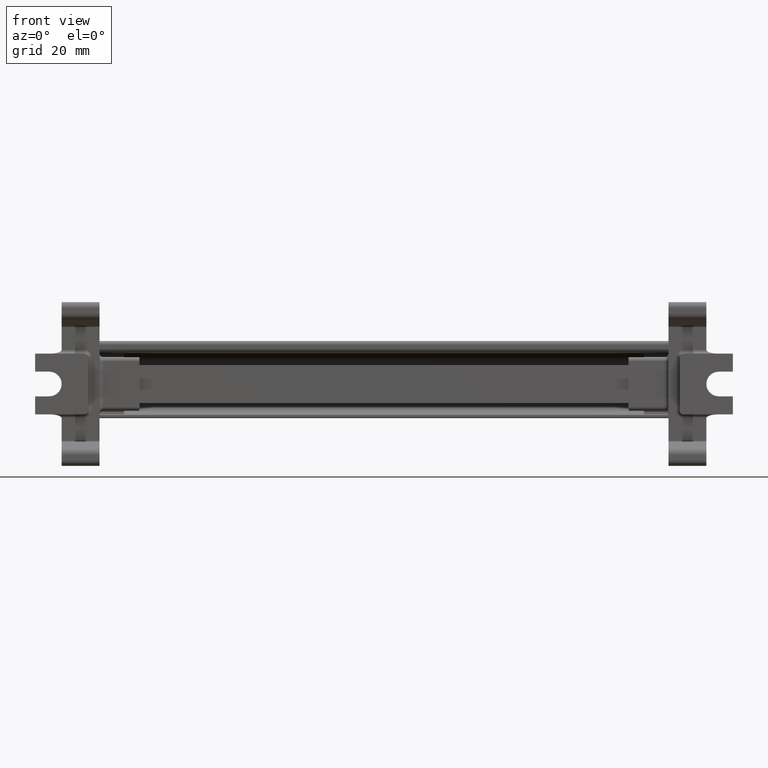
[diagram: clean part render]
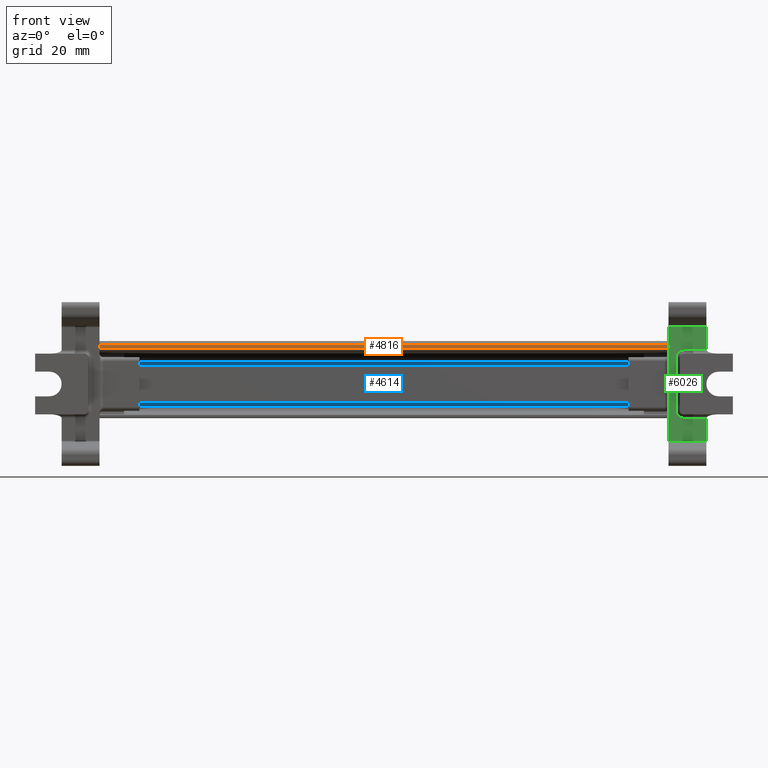
[diagram: same view with three faces highlighted in distinct colors, each labeled with its STEP entity id]
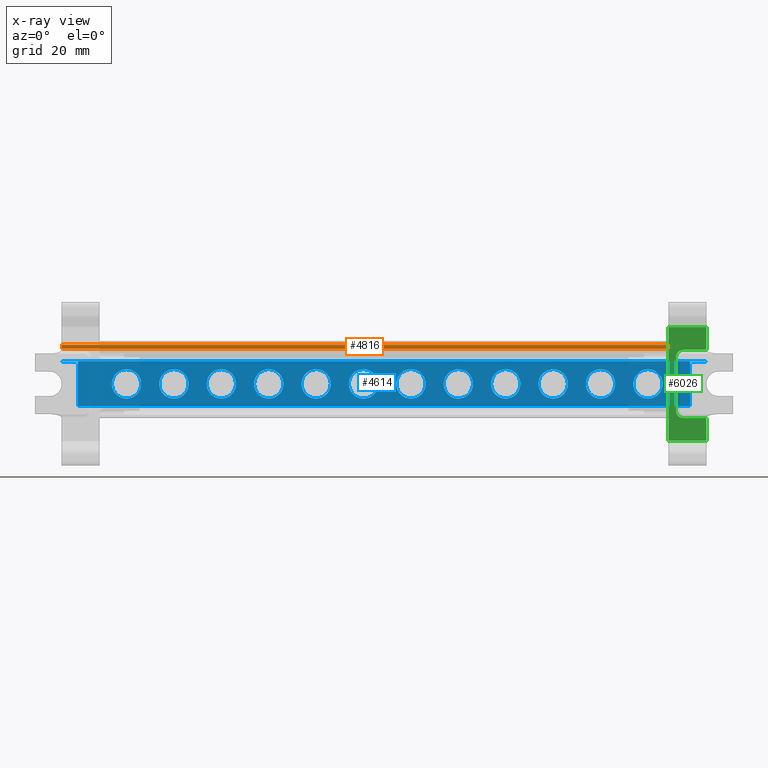
[diagram: x-ray of the same camera — body ghosted, the three highlighted faces saturated]
A machine part, front view with three faces highlighted in distinct colors.
The next image is the same camera in x-ray (body ghosted, the three faces saturated) — at least one of them is partly hidden behind the body in this view.
Their STEP definitions:

[orange] entity #4816 — the highlighted planar face has unit normal (0, 1, 0).
#7 = EDGE_LOOP ( 'NONE', ( #2125, #2147, #2160, #2137 ) ) ;
#2125 = ORIENTED_EDGE ( 'NONE', *, *, #7275, .F. ) ;
#2137 = ORIENTED_EDGE ( 'NONE', *, *, #12263, .T. ) ;
#2147 = ORIENTED_EDGE ( 'NONE', *, *, #12130, .F. ) ;
#2160 = ORIENTED_EDGE ( 'NONE', *, *, #11949, .T. ) ;
#4816 = ADVANCED_FACE ( 'NONE', ( #31772 ), #31781, .F. ) ;
#7275 = EDGE_CURVE ( 'NONE', #9704, #9675, #13911, .T. ) ;
#9539 = VERTEX_POINT ( 'NONE', #16777 ) ;
#9586 = VERTEX_POINT ( 'NONE', #16814 ) ;
#9675 = VERTEX_POINT ( 'NONE', #16861 ) ;
#9704 = VERTEX_POINT ( 'NONE', #16904 ) ;
#11949 = EDGE_CURVE ( 'NONE', #9539, #9586, #18241, .T. ) ;
#12130 = EDGE_CURVE ( 'NONE', #9539, #9704, #18037, .T. ) ;
#12263 = EDGE_CURVE ( 'NONE', #9586, #9675, #19900, .T. ) ;
#13911 = LINE ( 'NONE', #13912, #24447 ) ;
#13912 = CARTESIAN_POINT ( 'NONE',  ( -12.35269769582570000, 50.08103158804637200, 47.42609486049623500 ) ) ;
#13943 = DIRECTION ( 'NONE',  ( -1.000000000000000000, 7.897574933814930700E-015, 3.853197141484226100E-015 ) ) ;
#16777 = CARTESIAN_POINT ( 'NONE',  ( 44.94230230417426200, 50.08103030134751100, 48.41294037853481300 ) ) ;
#16814 = CARTESIAN_POINT ( 'NONE',  ( -124.8476976958257000, 50.08103030134884600, 48.41294037853546700 ) ) ;
#16861 = CARTESIAN_POINT ( 'NONE',  ( -124.8476976958257000, 50.08103158804726000, 47.42609486049666100 ) ) ;
#16904 = CARTESIAN_POINT ( 'NONE',  ( 44.94230230417425500, 50.08103158804592400, 47.42609486049600800 ) ) ;
#18037 = LINE ( 'NONE', #18038, #34335 ) ;
#18038 = CARTESIAN_POINT ( 'NONE',  ( 44.94230230417413500, 50.08107413732474800, 14.79252555379498300 ) ) ;
#18052 = DIRECTION ( 'NONE',  ( -3.864774200239575400E-015, 1.303849985042989100E-006, -0.9999999999991500100 ) ) ;
#18241 = LINE ( 'NONE', #18242, #31344 ) ;
#18242 = CARTESIAN_POINT ( 'NONE',  ( -12.35269769582570000, 50.08103030134795800, 48.41294037853504100 ) ) ;
#18258 = DIRECTION ( 'NONE',  ( -1.000000000000000000, 7.897574933814930700E-015, 3.853197141484226100E-015 ) ) ;
#19837 = CARTESIAN_POINT ( 'NONE',  ( -124.8476976958258100, 50.08107413732608400, 14.79252555379564000 ) ) ;
#19842 = DIRECTION ( 'NONE',  ( -3.864774200239575400E-015, 1.303849985042989100E-006, -0.9999999999991500100 ) ) ;
#19900 = LINE ( 'NONE', #19837, #24231 ) ;
#24231 = VECTOR ( 'NONE', #19842, 1000.000000000000100 ) ;
#24447 = VECTOR ( 'NONE', #13943, 1000.000000000000000 ) ;
#28183 = AXIS2_PLACEMENT_3D ( 'NONE', #31779, #31784, #31792 ) ;
#31344 = VECTOR ( 'NONE', #18258, 1000.000000000000000 ) ;
#31772 = FACE_OUTER_BOUND ( 'NONE', #7, .T. ) ;
#31779 = CARTESIAN_POINT ( 'NONE',  ( -12.35269769582580500, 50.08107413732519600, 14.79252555379520500 ) ) ;
#31781 = PLANE ( 'NONE',  #28183 ) ;
#31784 = DIRECTION ( 'NONE',  ( 7.897579957799254800E-015, 0.9999999999991500100, 1.303849985042989100E-006 ) ) ;
#31792 = DIRECTION ( 'NONE',  ( -6.895466885225492600E-021, -1.303849985042989100E-006, 0.9999999999991500100 ) ) ;
#34335 = VECTOR ( 'NONE', #18052, 1000.000000000000100 ) ;

[blue] entity #4614 — the highlighted planar face has unit normal (0, 1, 0).
#978 = EDGE_LOOP ( 'NONE', ( #26424, #26479 ) ) ;
#989 = EDGE_LOOP ( 'NONE', ( #26450, #26402 ) ) ;
#1011 = EDGE_LOOP ( 'NONE', ( #26511, #26453 ) ) ;
#1012 = EDGE_LOOP ( 'NONE', ( #26448, #26439 ) ) ;
#1022 = EDGE_LOOP ( 'NONE', ( #26396, #26487 ) ) ;
#1025 = EDGE_LOOP ( 'NONE', ( #26371, #26466 ) ) ;
#1026 = EDGE_LOOP ( 'NONE', ( #26446, #26496 ) ) ;
#1037 = EDGE_LOOP ( 'NONE', ( #26504, #26469 ) ) ;
#1049 = EDGE_LOOP ( 'NONE', ( #26536, #26438 ) ) ;
#1077 = EDGE_LOOP ( 'NONE', ( #26428, #26375 ) ) ;
#1091 = EDGE_LOOP ( 'NONE', ( #26523, #26514 ) ) ;
#1107 = EDGE_LOOP ( 'NONE', ( #26522, #26451 ) ) ;
#1143 = EDGE_LOOP ( 'NONE', ( #26507, #26494, #26533, #26485, #26495, #26501, #26474, #26415 ) ) ;
#4614 = ADVANCED_FACE ( 'NONE', ( #27342, #27343, #27320, #27325, #27348, #27337, #27338, #27357, #27354, #27319, #27336, #27315, #27316 ), #27332, .F. ) ;
#9514 = VERTEX_POINT ( 'NONE', #16644 ) ;
#9518 = VERTEX_POINT ( 'NONE', #16758 ) ;
#9522 = VERTEX_POINT ( 'NONE', #16782 ) ;
#9526 = VERTEX_POINT ( 'NONE', #16669 ) ;
#9547 = VERTEX_POINT ( 'NONE', #16737 ) ;
#9548 = VERTEX_POINT ( 'NONE', #16776 ) ;
#9554 = VERTEX_POINT ( 'NONE', #16789 ) ;
#9569 = VERTEX_POINT ( 'NONE', #16731 ) ;
#9581 = VERTEX_POINT ( 'NONE', #16836 ) ;
#9587 = VERTEX_POINT ( 'NONE', #16821 ) ;
#9589 = VERTEX_POINT ( 'NONE', #16833 ) ;
#9605 = VERTEX_POINT ( 'NONE', #16841 ) ;
#9608 = VERTEX_POINT ( 'NONE', #16806 ) ;
#9643 = VERTEX_POINT ( 'NONE', #16906 ) ;
#9672 = VERTEX_POINT ( 'NONE', #16903 ) ;
#9678 = VERTEX_POINT ( 'NONE', #16894 ) ;
#9680 = VERTEX_POINT ( 'NONE', #16920 ) ;
#9694 = VERTEX_POINT ( 'NONE', #16869 ) ;
#9705 = VERTEX_POINT ( 'NONE', #16910 ) ;
#9708 = VERTEX_POINT ( 'NONE', #16952 ) ;
#9719 = VERTEX_POINT ( 'NONE', #16978 ) ;
#9748 = VERTEX_POINT ( 'NONE', #16968 ) ;
#10597 = VERTEX_POINT ( 'NONE', #17289 ) ;
#10612 = VERTEX_POINT ( 'NONE', #17300 ) ;
#10615 = VERTEX_POINT ( 'NONE', #17283 ) ;
#10621 = VERTEX_POINT ( 'NONE', #17301 ) ;
#10624 = VERTEX_POINT ( 'NONE', #17286 ) ;
#10625 = VERTEX_POINT ( 'NONE', #17267 ) ;
#11860 = EDGE_CURVE ( 'NONE', #10621, #10624, #31225, .T. ) ;
#11865 = EDGE_CURVE ( 'NONE', #10612, #19290, #31228, .T. ) ;
#11867 = EDGE_CURVE ( 'NONE', #19314, #19320, #31233, .T. ) ;
#11910 = EDGE_CURVE ( 'NONE', #10597, #10615, #31274, .T. ) ;
#11915 = EDGE_CURVE ( 'NONE', #9569, #9548, #31311, .T. ) ;
#11936 = EDGE_CURVE ( 'NONE', #9526, #9547, #31330, .T. ) ;
#11956 = EDGE_CURVE ( 'NONE', #9518, #9587, #31337, .T. ) ;
#11959 = EDGE_CURVE ( 'NONE', #9514, #9581, #31338, .T. ) ;
#11967 = EDGE_CURVE ( 'NONE', #9554, #9522, #31387, .T. ) ;
#11988 = EDGE_CURVE ( 'NONE', #9605, #9608, #31159, .T. ) ;
#11999 = EDGE_CURVE ( 'NONE', #9708, #9680, #18516, .T. ) ;
#12063 = EDGE_CURVE ( 'NONE', #9643, #9589, #34224, .T. ) ;
#12094 = EDGE_CURVE ( 'NONE', #9581, #9514, #34371, .T. ) ;
#12126 = EDGE_CURVE ( 'NONE', #9672, #9678, #18050, .T. ) ;
#12156 = EDGE_CURVE ( 'NONE', #9608, #9605, #34529, .T. ) ;
#12160 = EDGE_CURVE ( 'NONE', #9522, #9554, #34514, .T. ) ;
#12167 = EDGE_CURVE ( 'NONE', #9708, #9748, #18106, .T. ) ;
#12169 = EDGE_CURVE ( 'NONE', #9719, #9680, #18707, .T. ) ;
#12213 = EDGE_CURVE ( 'NONE', #9547, #9526, #24165, .T. ) ;
#12214 = EDGE_CURVE ( 'NONE', #9548, #9569, #24169, .T. ) ;
#12219 = EDGE_CURVE ( 'NONE', #19320, #19314, #24184, .T. ) ;
#12220 = EDGE_CURVE ( 'NONE', #19290, #10612, #24199, .T. ) ;
#12240 = EDGE_CURVE ( 'NONE', #9748, #9678, #21756, .T. ) ;
#12249 = EDGE_CURVE ( 'NONE', #9589, #9643, #24189, .T. ) ;
#12255 = EDGE_CURVE ( 'NONE', #9672, #9694, #19838, .T. ) ;
#12273 = EDGE_CURVE ( 'NONE', #10624, #10621, #24249, .T. ) ;
#12277 = EDGE_CURVE ( 'NONE', #10615, #10597, #24246, .T. ) ;
#12280 = EDGE_CURVE ( 'NONE', #19296, #10625, #24271, .T. ) ;
#12294 = EDGE_CURVE ( 'NONE', #9719, #9705, #20176, .T. ) ;
#12298 = EDGE_CURVE ( 'NONE', #9694, #9705, #20279, .T. ) ;
#12301 = EDGE_CURVE ( 'NONE', #9587, #9518, #24302, .T. ) ;
#12467 = EDGE_CURVE ( 'NONE', #10625, #19296, #23836, .T. ) ;
#13598 = DIRECTION ( 'NONE',  ( -7.897574933814967000E-015, -1.000000000000000000, -9.563626555420530900E-015 ) ) ;
#13633 = DIRECTION ( 'NONE',  ( 0.0000000000000000000, -1.075847481370219800E-014, 1.000000000000000000 ) ) ;
#16532 = CARTESIAN_POINT ( 'NONE',  ( -45.35269769582559000, 73.21282648293230000, 38.07764994244596600 ) ) ;
#16591 = DIRECTION ( 'NONE',  ( 0.0000000000000000000, 1.075797504481741200E-014, -1.000000000000000000 ) ) ;
#16600 = CARTESIAN_POINT ( 'NONE',  ( -120.6521591830564400, 73.21282648293350800, 14.79254153265042500 ) ) ;
#16606 = DIRECTION ( 'NONE',  ( -7.897574933814967000E-015, -1.000000000000000000, -9.563626555420530900E-015 ) ) ;
#16608 = DIRECTION ( 'NONE',  ( 3.511194151394856200E-015, 9.563626555420502500E-015, -1.000000000000000000 ) ) ;
#16619 = CARTESIAN_POINT ( 'NONE',  ( 29.64730230417446700, 73.21282648293218600, 38.07764994244592300 ) ) ;
#16644 = CARTESIAN_POINT ( 'NONE',  ( -24.22251792075321200, 73.21282648293210100, 38.07764998369773200 ) ) ;
#16669 = CARTESIAN_POINT ( 'NONE',  ( -61.72251792075320500, 73.21282648293252700, 38.07764998369773200 ) ) ;
#16731 = CARTESIAN_POINT ( 'NONE',  ( -49.22251792075321900, 73.21282648293232900, 38.07764998369773200 ) ) ;
#16737 = CARTESIAN_POINT ( 'NONE',  ( -53.98287747089791100, 73.21282648293247100, 38.07764998369773200 ) ) ;
#16758 = CARTESIAN_POINT ( 'NONE',  ( -36.72251792075319800, 73.21282648293230000, 38.07764998369773200 ) ) ;
#16776 = CARTESIAN_POINT ( 'NONE',  ( -41.48287747089791800, 73.21282648293227200, 38.07764998369773200 ) ) ;
#16782 = CARTESIAN_POINT ( 'NONE',  ( -3.982877470897917300, 73.21282648293207300, 38.07764998369773200 ) ) ;
#16789 = CARTESIAN_POINT ( 'NONE',  ( -11.72251792075321000, 73.21282648293213000, 38.07764998369773200 ) ) ;
#16806 = CARTESIAN_POINT ( 'NONE',  ( -66.48287747089796100, 73.21282648293247100, 38.07764998369773200 ) ) ;
#16821 = CARTESIAN_POINT ( 'NONE',  ( -28.98287747089790400, 73.21282648293224300, 38.07764998369773200 ) ) ;
#16833 = CARTESIAN_POINT ( 'NONE',  ( 8.517122529102085300, 73.21282648293204400, 38.07764998369773200 ) ) ;
#16836 = CARTESIAN_POINT ( 'NONE',  ( -16.48287747089791100, 73.21282648293204400, 38.07764998369773200 ) ) ;
#16841 = CARTESIAN_POINT ( 'NONE',  ( -74.22251792075324800, 73.21282648293252700, 38.07764998369773200 ) ) ;
#16869 = CARTESIAN_POINT ( 'NONE',  ( -124.8476976958255300, 73.21282648293311000, 44.07424903034279900 ) ) ;
#16894 = CARTESIAN_POINT ( 'NONE',  ( 44.94230230417442600, 73.21282648293252700, 43.93826644650412300 ) ) ;
#16903 = CARTESIAN_POINT ( 'NONE',  ( 44.94230230417442600, 73.21282648293176000, 44.07424903034214500 ) ) ;
#16906 = CARTESIAN_POINT ( 'NONE',  ( 0.7774820792467909100, 73.21282648293210100, 38.07764998369773200 ) ) ;
#16910 = CARTESIAN_POINT ( 'NONE',  ( -124.8476976958255700, 73.21282648293333800, 43.93826644650375400 ) ) ;
#16920 = CARTESIAN_POINT ( 'NONE',  ( -120.6521591830565300, 73.21282648293329500, 32.27425228012668900 ) ) ;
#16952 = CARTESIAN_POINT ( 'NONE',  ( 40.74676379140873900, 73.21282648293261300, 32.27425228012604900 ) ) ;
#16968 = CARTESIAN_POINT ( 'NONE',  ( 40.74676379140844100, 73.21282648293197300, 43.93826644650403800 ) ) ;
#16978 = CARTESIAN_POINT ( 'NONE',  ( -120.6521591830565000, 73.21282648293339400, 43.93826644650369700 ) ) ;
#17267 = CARTESIAN_POINT ( 'NONE',  ( -82.85269769582559700, 73.21282648293303900, 41.94764994223232400 ) ) ;
#17283 = CARTESIAN_POINT ( 'NONE',  ( 29.64730230417444500, 73.21282648293222900, 34.20764994223077300 ) ) ;
#17286 = CARTESIAN_POINT ( 'NONE',  ( -95.35269769582561100, 73.21282648293319500, 34.20764994223090800 ) ) ;
#17289 = CARTESIAN_POINT ( 'NONE',  ( 29.64730230417444500, 73.21282648293214400, 41.94764994223222500 ) ) ;
#17300 = CARTESIAN_POINT ( 'NONE',  ( -107.8526976958255800, 73.21282648293325200, 41.94764994223242400 ) ) ;
#17301 = CARTESIAN_POINT ( 'NONE',  ( -95.35269769582561100, 73.21282648293312400, 41.94764994223236700 ) ) ;
#17558 = CARTESIAN_POINT ( 'NONE',  ( -95.35269769582552600, 73.21282648293316700, 38.07764994244600800 ) ) ;
#17578 = DIRECTION ( 'NONE',  ( -7.897574933814967000E-015, -1.000000000000000000, -9.563626555420530900E-015 ) ) ;
#17583 = DIRECTION ( 'NONE',  ( 0.0000000000000000000, 1.075797504481741200E-014, -1.000000000000000000 ) ) ;
#17584 = DIRECTION ( 'NONE',  ( 0.0000000000000000000, 1.075797504481741200E-014, -1.000000000000000000 ) ) ;
#17586 = CARTESIAN_POINT ( 'NONE',  ( 17.14730230417447000, 73.21282648293227200, 38.07764994244596600 ) ) ;
#17588 = DIRECTION ( 'NONE',  ( -7.897574933814967000E-015, -1.000000000000000000, -9.563626555420530900E-015 ) ) ;
#17596 = CARTESIAN_POINT ( 'NONE',  ( -107.8526976958255400, 73.21282648293329500, 38.07764994244606500 ) ) ;
#17598 = DIRECTION ( 'NONE',  ( -7.897574933814967000E-015, -1.000000000000000000, -9.563626555420530900E-015 ) ) ;
#17603 = DIRECTION ( 'NONE',  ( 0.0000000000000000000, 1.075797504481741200E-014, -1.000000000000000000 ) ) ;
#18018 = DIRECTION ( 'NONE',  ( -3.864784542006132900E-015, 9.563626555420560900E-015, -1.000000000000000000 ) ) ;
#18028 = CARTESIAN_POINT ( 'NONE',  ( 44.94230230417430500, 73.21282648293220100, 14.79254153265040000 ) ) ;
#18050 = LINE ( 'NONE', #18028, #34387 ) ;
#18106 = LINE ( 'NONE', #18207, #34495 ) ;
#18108 = DIRECTION ( 'NONE',  ( -7.897574933814967000E-015, -1.000000000000000000, -9.563626555420530900E-015 ) ) ;
#18109 = DIRECTION ( 'NONE',  ( 0.0000000000000000000, -1.075847481370219800E-014, 1.000000000000000000 ) ) ;
#18113 = CARTESIAN_POINT ( 'NONE',  ( -70.35269769582552600, 73.21282648293249900, 38.07764994244596600 ) ) ;
#18124 = DIRECTION ( 'NONE',  ( -7.897574933814967000E-015, -1.000000000000000000, -9.563626555420530900E-015 ) ) ;
#18132 = DIRECTION ( 'NONE',  ( 0.0000000000000000000, -1.075847481370219800E-014, 1.000000000000000000 ) ) ;
#18138 = CARTESIAN_POINT ( 'NONE',  ( -7.852697695825533200, 73.21282648293210100, 38.07764994244596600 ) ) ;
#18207 = CARTESIAN_POINT ( 'NONE',  ( 40.74676379140854700, 73.21282648293224300, 14.79254153265099200 ) ) ;
#18226 = CARTESIAN_POINT ( 'NONE',  ( -57.85269769582554000, 73.21282648293249900, 38.07764994244596600 ) ) ;
#18227 = DIRECTION ( 'NONE',  ( -7.897574933814967000E-015, -1.000000000000000000, -9.563626555420530900E-015 ) ) ;
#18233 = DIRECTION ( 'NONE',  ( 0.0000000000000000000, -1.075847481370219800E-014, 1.000000000000000000 ) ) ;
#18288 = CARTESIAN_POINT ( 'NONE',  ( -32.85269769582555500, 73.21282648293227200, 38.07764994244596600 ) ) ;
#18297 = DIRECTION ( 'NONE',  ( -7.897574933814967000E-015, -1.000000000000000000, -9.563626555420530900E-015 ) ) ;
#18333 = DIRECTION ( 'NONE',  ( 0.0000000000000000000, -1.075847481370219800E-014, 1.000000000000000000 ) ) ;
#18347 = DIRECTION ( 'NONE',  ( -7.897574933814967000E-015, -1.000000000000000000, -9.563626555420530900E-015 ) ) ;
#18348 = DIRECTION ( 'NONE',  ( -3.511194265331545800E-015, -9.563626555420502500E-015, 1.000000000000000000 ) ) ;
#18349 = DIRECTION ( 'NONE',  ( 0.0000000000000000000, -1.075847481370219800E-014, 1.000000000000000000 ) ) ;
#18351 = CARTESIAN_POINT ( 'NONE',  ( -7.852697695825533200, 73.21282648293210100, 38.07764994244596600 ) ) ;
#18360 = DIRECTION ( 'NONE',  ( -7.897574933814967000E-015, -1.000000000000000000, -9.563626555420530900E-015 ) ) ;
#18363 = DIRECTION ( 'NONE',  ( 0.0000000000000000000, -1.075847481370219800E-014, 1.000000000000000000 ) ) ;
#18378 = CARTESIAN_POINT ( 'NONE',  ( -20.35269769582555800, 73.21282648293207300, 38.07764994244596600 ) ) ;
#18434 = CARTESIAN_POINT ( 'NONE',  ( -70.35269769582552600, 73.21282648293249900, 38.07764994244596600 ) ) ;
#18438 = DIRECTION ( 'NONE',  ( -7.897574933814967000E-015, -1.000000000000000000, -9.563626555420530900E-015 ) ) ;
#18439 = DIRECTION ( 'NONE',  ( 0.0000000000000000000, -1.075847481370219800E-014, 1.000000000000000000 ) ) ;
#18516 = LINE ( 'NONE', #18517, #34561 ) ;
#18517 = CARTESIAN_POINT ( 'NONE',  ( -12.35269769582558700, 73.21282648293244200, 32.27425228012626900 ) ) ;
#18522 = DIRECTION ( 'NONE',  ( -1.000000000000000000, 7.897574933814930700E-015, 3.853197141484226100E-015 ) ) ;
#18707 = LINE ( 'NONE', #16600, #34528 ) ;
#18831 = CARTESIAN_POINT ( 'NONE',  ( 4.647302304174467700, 73.21282648293207300, 38.07764994244596600 ) ) ;
#18845 = DIRECTION ( 'NONE',  ( 0.0000000000000000000, -1.075847481370219800E-014, 1.000000000000000000 ) ) ;
#18862 = DIRECTION ( 'NONE',  ( -7.897574933814967000E-015, -1.000000000000000000, -9.563626555420530900E-015 ) ) ;
#18925 = CARTESIAN_POINT ( 'NONE',  ( -20.35269769582555800, 73.21282648293207300, 38.07764994244596600 ) ) ;
#18950 = DIRECTION ( 'NONE',  ( -7.897574933814967000E-015, -1.000000000000000000, -9.563626555420530900E-015 ) ) ;
#18957 = DIRECTION ( 'NONE',  ( 0.0000000000000000000, -1.075847481370219800E-014, 1.000000000000000000 ) ) ;
#19290 = VERTEX_POINT ( 'NONE', #23752 ) ;
#19296 = VERTEX_POINT ( 'NONE', #23694 ) ;
#19314 = VERTEX_POINT ( 'NONE', #23787 ) ;
#19320 = VERTEX_POINT ( 'NONE', #23767 ) ;
#19762 = CARTESIAN_POINT ( 'NONE',  ( 4.647302304174467700, 73.21282648293207300, 38.07764994244596600 ) ) ;
#19766 = DIRECTION ( 'NONE',  ( -7.897574933814967000E-015, -1.000000000000000000, -9.563626555420530900E-015 ) ) ;
#19767 = DIRECTION ( 'NONE',  ( 0.0000000000000000000, -1.075847481370219800E-014, 1.000000000000000000 ) ) ;
#19838 = LINE ( 'NONE', #19850, #24190 ) ;
#19850 = CARTESIAN_POINT ( 'NONE',  ( -12.35269769582553700, 73.21282648293221500, 44.07424903034237200 ) ) ;
#19863 = DIRECTION ( 'NONE',  ( -1.000000000000000000, 7.897574933814930700E-015, 3.853197141484226100E-015 ) ) ;
#19923 = CARTESIAN_POINT ( 'NONE',  ( -95.35269769582552600, 73.21282648293316700, 38.07764994244600800 ) ) ;
#19926 = DIRECTION ( 'NONE',  ( -7.897574933814967000E-015, -1.000000000000000000, -9.563626555420530900E-015 ) ) ;
#19941 = DIRECTION ( 'NONE',  ( 0.0000000000000000000, 1.075797504481741200E-014, -1.000000000000000000 ) ) ;
#20026 = DIRECTION ( 'NONE',  ( 0.0000000000000000000, 1.075797504481741200E-014, -1.000000000000000000 ) ) ;
#20051 = CARTESIAN_POINT ( 'NONE',  ( -82.85269769582554000, 73.21282648293308200, 38.07764994244596600 ) ) ;
#20057 = DIRECTION ( 'NONE',  ( -7.897574933814967000E-015, -1.000000000000000000, -9.563626555420530900E-015 ) ) ;
#20063 = CARTESIAN_POINT ( 'NONE',  ( 29.64730230417446700, 73.21282648293218600, 38.07764994244592300 ) ) ;
#20093 = DIRECTION ( 'NONE',  ( 0.0000000000000000000, 1.075797504481741200E-014, -1.000000000000000000 ) ) ;
#20096 = DIRECTION ( 'NONE',  ( -7.897574933814967000E-015, -1.000000000000000000, -9.563626555420530900E-015 ) ) ;
#20133 = DIRECTION ( 'NONE',  ( -1.000000000000000000, 7.897574987183540300E-015, 9.029821419627671300E-015 ) ) ;
#20176 = LINE ( 'NONE', #20216, #24305 ) ;
#20216 = CARTESIAN_POINT ( 'NONE',  ( -118.7669296700364000, 73.21282648293329500, 43.93826644650369700 ) ) ;
#20255 = DIRECTION ( 'NONE',  ( -3.864784542006132900E-015, 9.563626555420560900E-015, -1.000000000000000000 ) ) ;
#20276 = DIRECTION ( 'NONE',  ( 0.0000000000000000000, -1.075847481370219800E-014, 1.000000000000000000 ) ) ;
#20279 = LINE ( 'NONE', #20291, #24297 ) ;
#20287 = CARTESIAN_POINT ( 'NONE',  ( -32.85269769582555500, 73.21282648293227200, 38.07764994244596600 ) ) ;
#20291 = CARTESIAN_POINT ( 'NONE',  ( -124.8476976958256300, 73.21282648293355100, 14.79254153265105600 ) ) ;
#20311 = DIRECTION ( 'NONE',  ( -7.897574933814967000E-015, -1.000000000000000000, -9.563626555420530900E-015 ) ) ;
#21502 = DIRECTION ( 'NONE',  ( -7.897574933814967000E-015, -1.000000000000000000, -9.563626555420530900E-015 ) ) ;
#21511 = DIRECTION ( 'NONE',  ( -7.897574933814967000E-015, -1.000000000000000000, -9.563626555420530900E-015 ) ) ;
#21513 = DIRECTION ( 'NONE',  ( 0.0000000000000000000, -1.075847481370219800E-014, 1.000000000000000000 ) ) ;
#21553 = DIRECTION ( 'NONE',  ( 0.0000000000000000000, -1.075847481370219800E-014, 1.000000000000000000 ) ) ;
#21555 = CARTESIAN_POINT ( 'NONE',  ( -57.85269769582554000, 73.21282648293249900, 38.07764994244596600 ) ) ;
#21594 = CARTESIAN_POINT ( 'NONE',  ( -45.35269769582559000, 73.21282648293230000, 38.07764994244596600 ) ) ;
#21625 = DIRECTION ( 'NONE',  ( -7.897574933814967000E-015, -1.000000000000000000, -9.563626555420530900E-015 ) ) ;
#21644 = CARTESIAN_POINT ( 'NONE',  ( -107.8526976958255400, 73.21282648293329500, 38.07764994244606500 ) ) ;
#21668 = DIRECTION ( 'NONE',  ( 0.0000000000000000000, 1.075797504481741200E-014, -1.000000000000000000 ) ) ;
#21671 = CARTESIAN_POINT ( 'NONE',  ( 17.14730230417447000, 73.21282648293227200, 38.07764994244596600 ) ) ;
#21688 = DIRECTION ( 'NONE',  ( 0.0000000000000000000, 1.075797504481741200E-014, -1.000000000000000000 ) ) ;
#21693 = DIRECTION ( 'NONE',  ( -7.897574933814967000E-015, -1.000000000000000000, -9.563626555420530900E-015 ) ) ;
#21734 = DIRECTION ( 'NONE',  ( 1.000000000000000000, -7.897574987183300500E-015, 1.605220983635392100E-014 ) ) ;
#21736 = CARTESIAN_POINT ( 'NONE',  ( 38.86153427838853200, 73.21282648293257000, 43.93826644650402400 ) ) ;
#21756 = LINE ( 'NONE', #21736, #24202 ) ;
#23437 = DIRECTION ( 'NONE',  ( -7.897574933814967000E-015, -1.000000000000000000, -9.563626555420530900E-015 ) ) ;
#23440 = DIRECTION ( 'NONE',  ( 0.0000000000000000000, 1.075797504481741200E-014, -1.000000000000000000 ) ) ;
#23452 = CARTESIAN_POINT ( 'NONE',  ( -82.85269769582554000, 73.21282648293308200, 38.07764994244596600 ) ) ;
#23694 = CARTESIAN_POINT ( 'NONE',  ( -82.85269769582559700, 73.21282648293312400, 34.20764994223087300 ) ) ;
#23752 = CARTESIAN_POINT ( 'NONE',  ( -107.8526976958255800, 73.21282648293333800, 34.20764994223096500 ) ) ;
#23767 = CARTESIAN_POINT ( 'NONE',  ( 17.14730230417444900, 73.21282648293231400, 34.20764994223081600 ) ) ;
#23787 = CARTESIAN_POINT ( 'NONE',  ( 17.14730230417444900, 73.21282648293222900, 41.94764994223226800 ) ) ;
#23836 = CIRCLE ( 'NONE', #23874, 3.869999999999998300 ) ;
#23874 = AXIS2_PLACEMENT_3D ( 'NONE', #23452, #23437, #23440 ) ;
#24158 = AXIS2_PLACEMENT_3D ( 'NONE', #21555, #21511, #21513 ) ;
#24165 = CIRCLE ( 'NONE', #24158, 3.869820224928009800 ) ;
#24166 = AXIS2_PLACEMENT_3D ( 'NONE', #21594, #21502, #21553 ) ;
#24169 = CIRCLE ( 'NONE', #24166, 3.869820224928009800 ) ;
#24184 = CIRCLE ( 'NONE', #24198, 3.869999999999998300 ) ;
#24189 = CIRCLE ( 'NONE', #24208, 3.869820224928009800 ) ;
#24190 = VECTOR ( 'NONE', #19863, 1000.000000000000000 ) ;
#24198 = AXIS2_PLACEMENT_3D ( 'NONE', #21671, #21693, #21668 ) ;
#24199 = CIRCLE ( 'NONE', #24204, 3.869999999999998300 ) ;
#24202 = VECTOR ( 'NONE', #21734, 1000.000000000000000 ) ;
#24204 = AXIS2_PLACEMENT_3D ( 'NONE', #21644, #21625, #21688 ) ;
#24208 = AXIS2_PLACEMENT_3D ( 'NONE', #19762, #19766, #19767 ) ;
#24236 = AXIS2_PLACEMENT_3D ( 'NONE', #19923, #19926, #19941 ) ;
#24246 = CIRCLE ( 'NONE', #24247, 3.869999999999998300 ) ;
#24247 = AXIS2_PLACEMENT_3D ( 'NONE', #20063, #20096, #20026 ) ;
#24249 = CIRCLE ( 'NONE', #24236, 3.869999999999998300 ) ;
#24271 = CIRCLE ( 'NONE', #24284, 3.869999999999998300 ) ;
#24284 = AXIS2_PLACEMENT_3D ( 'NONE', #20051, #20057, #20093 ) ;
#24293 = AXIS2_PLACEMENT_3D ( 'NONE', #20287, #20311, #20276 ) ;
#24297 = VECTOR ( 'NONE', #20255, 1000.000000000000000 ) ;
#24302 = CIRCLE ( 'NONE', #24293, 3.869820224928009800 ) ;
#24305 = VECTOR ( 'NONE', #20133, 1000.000000000000000 ) ;
#26371 = ORIENTED_EDGE ( 'NONE', *, *, #12220, .F. ) ;
#26375 = ORIENTED_EDGE ( 'NONE', *, *, #11915, .F. ) ;
#26396 = ORIENTED_EDGE ( 'NONE', *, *, #12280, .F. ) ;
#26402 = ORIENTED_EDGE ( 'NONE', *, *, #11860, .F. ) ;
#26415 = ORIENTED_EDGE ( 'NONE', *, *, #12298, .T. ) ;
#26424 = ORIENTED_EDGE ( 'NONE', *, *, #12213, .F. ) ;
#26428 = ORIENTED_EDGE ( 'NONE', *, *, #12214, .F. ) ;
#26438 = ORIENTED_EDGE ( 'NONE', *, *, #11988, .F. ) ;
#26439 = ORIENTED_EDGE ( 'NONE', *, *, #12063, .F. ) ;
#26446 = ORIENTED_EDGE ( 'NONE', *, *, #12160, .F. ) ;
#26448 = ORIENTED_EDGE ( 'NONE', *, *, #12249, .F. ) ;
#26450 = ORIENTED_EDGE ( 'NONE', *, *, #12273, .F. ) ;
#26451 = ORIENTED_EDGE ( 'NONE', *, *, #11956, .F. ) ;
#26453 = ORIENTED_EDGE ( 'NONE', *, *, #11867, .F. ) ;
#26466 = ORIENTED_EDGE ( 'NONE', *, *, #11865, .F. ) ;
#26469 = ORIENTED_EDGE ( 'NONE', *, *, #11910, .F. ) ;
#26474 = ORIENTED_EDGE ( 'NONE', *, *, #12255, .T. ) ;
#26479 = ORIENTED_EDGE ( 'NONE', *, *, #11936, .F. ) ;
#26485 = ORIENTED_EDGE ( 'NONE', *, *, #12167, .T. ) ;
#26487 = ORIENTED_EDGE ( 'NONE', *, *, #12467, .F. ) ;
#26494 = ORIENTED_EDGE ( 'NONE', *, *, #12169, .T. ) ;
#26495 = ORIENTED_EDGE ( 'NONE', *, *, #12240, .T. ) ;
#26496 = ORIENTED_EDGE ( 'NONE', *, *, #11967, .F. ) ;
#26501 = ORIENTED_EDGE ( 'NONE', *, *, #12126, .F. ) ;
#26504 = ORIENTED_EDGE ( 'NONE', *, *, #12277, .F. ) ;
#26507 = ORIENTED_EDGE ( 'NONE', *, *, #12294, .F. ) ;
#26511 = ORIENTED_EDGE ( 'NONE', *, *, #12219, .F. ) ;
#26514 = ORIENTED_EDGE ( 'NONE', *, *, #11959, .F. ) ;
#26522 = ORIENTED_EDGE ( 'NONE', *, *, #12301, .F. ) ;
#26523 = ORIENTED_EDGE ( 'NONE', *, *, #12094, .F. ) ;
#26533 = ORIENTED_EDGE ( 'NONE', *, *, #11999, .F. ) ;
#26536 = ORIENTED_EDGE ( 'NONE', *, *, #12156, .F. ) ;
#27315 = FACE_BOUND ( 'NONE', #1091, .T. ) ;
#27316 = FACE_OUTER_BOUND ( 'NONE', #1143, .T. ) ;
#27317 = DIRECTION ( 'NONE',  ( 2.163620578183669200E-021, -9.563626555420530900E-015, 1.000000000000000000 ) ) ;
#27319 = FACE_BOUND ( 'NONE', #978, .T. ) ;
#27320 = FACE_BOUND ( 'NONE', #1025, .T. ) ;
#27325 = FACE_BOUND ( 'NONE', #989, .T. ) ;
#27332 = PLANE ( 'NONE',  #27962 ) ;
#27334 = CARTESIAN_POINT ( 'NONE',  ( -37.35269769582564700, 73.21282648293285400, 14.79254153265071800 ) ) ;
#27336 = FACE_BOUND ( 'NONE', #1077, .T. ) ;
#27337 = FACE_BOUND ( 'NONE', #1049, .T. ) ;
#27338 = FACE_BOUND ( 'NONE', #1012, .T. ) ;
#27342 = FACE_BOUND ( 'NONE', #1037, .T. ) ;
#27343 = FACE_BOUND ( 'NONE', #1011, .T. ) ;
#27348 = FACE_BOUND ( 'NONE', #1022, .T. ) ;
#27350 = DIRECTION ( 'NONE',  ( 7.897574933814965400E-015, 1.000000000000000000, 9.563626555420530900E-015 ) ) ;
#27354 = FACE_BOUND ( 'NONE', #1107, .T. ) ;
#27357 = FACE_BOUND ( 'NONE', #1026, .T. ) ;
#27962 = AXIS2_PLACEMENT_3D ( 'NONE', #27334, #27350, #27317 ) ;
#31159 = CIRCLE ( 'NONE', #31169, 3.869820224928009800 ) ;
#31169 = AXIS2_PLACEMENT_3D ( 'NONE', #18434, #18438, #18439 ) ;
#31225 = CIRCLE ( 'NONE', #31227, 3.869999999999998300 ) ;
#31227 = AXIS2_PLACEMENT_3D ( 'NONE', #17558, #17578, #17584 ) ;
#31228 = CIRCLE ( 'NONE', #31229, 3.869999999999998300 ) ;
#31229 = AXIS2_PLACEMENT_3D ( 'NONE', #17596, #17598, #17583 ) ;
#31233 = CIRCLE ( 'NONE', #31235, 3.869999999999998300 ) ;
#31235 = AXIS2_PLACEMENT_3D ( 'NONE', #17586, #17588, #17603 ) ;
#31265 = AXIS2_PLACEMENT_3D ( 'NONE', #16532, #13598, #13633 ) ;
#31274 = CIRCLE ( 'NONE', #31284, 3.869999999999998300 ) ;
#31284 = AXIS2_PLACEMENT_3D ( 'NONE', #16619, #16606, #16591 ) ;
#31311 = CIRCLE ( 'NONE', #31265, 3.869820224928009800 ) ;
#31330 = CIRCLE ( 'NONE', #31372, 3.869820224928009800 ) ;
#31337 = CIRCLE ( 'NONE', #31343, 3.869820224928009800 ) ;
#31338 = CIRCLE ( 'NONE', #31356, 3.869820224928009800 ) ;
#31343 = AXIS2_PLACEMENT_3D ( 'NONE', #18288, #18297, #18333 ) ;
#31356 = AXIS2_PLACEMENT_3D ( 'NONE', #18378, #18360, #18363 ) ;
#31372 = AXIS2_PLACEMENT_3D ( 'NONE', #18226, #18227, #18233 ) ;
#31387 = CIRCLE ( 'NONE', #31396, 3.869820224928009800 ) ;
#31396 = AXIS2_PLACEMENT_3D ( 'NONE', #18351, #18347, #18349 ) ;
#34224 = CIRCLE ( 'NONE', #34281, 3.869820224928009800 ) ;
#34281 = AXIS2_PLACEMENT_3D ( 'NONE', #18831, #18862, #18845 ) ;
#34371 = CIRCLE ( 'NONE', #34409, 3.869820224928009800 ) ;
#34387 = VECTOR ( 'NONE', #18018, 1000.000000000000000 ) ;
#34409 = AXIS2_PLACEMENT_3D ( 'NONE', #18925, #18950, #18957 ) ;
#34481 = AXIS2_PLACEMENT_3D ( 'NONE', #18113, #18108, #18132 ) ;
#34495 = VECTOR ( 'NONE', #18348, 1000.000000000000000 ) ;
#34514 = CIRCLE ( 'NONE', #34522, 3.869820224928009800 ) ;
#34522 = AXIS2_PLACEMENT_3D ( 'NONE', #18138, #18124, #18109 ) ;
#34528 = VECTOR ( 'NONE', #16608, 1000.000000000000000 ) ;
#34529 = CIRCLE ( 'NONE', #34481, 3.869820224928009800 ) ;
#34561 = VECTOR ( 'NONE', #18522, 1000.000000000000000 ) ;

[green] entity #6026 — the highlighted planar face has unit normal (-0, -1, -0).
#228 = VERTEX_POINT ( 'NONE', #33561 ) ;
#665 = VERTEX_POINT ( 'NONE', #33528 ) ;
#830 = EDGE_LOOP ( 'NONE', ( #2440, #2443, #2431, #2423, #2421, #2441, #2466, #2477, #2460, #2456, #2481, #2420 ) ) ;
#2420 = ORIENTED_EDGE ( 'NONE', *, *, #5172, .T. ) ;
#2421 = ORIENTED_EDGE ( 'NONE', *, *, #6756, .F. ) ;
#2423 = ORIENTED_EDGE ( 'NONE', *, *, #5780, .T. ) ;
#2431 = ORIENTED_EDGE ( 'NONE', *, *, #5786, .T. ) ;
#2440 = ORIENTED_EDGE ( 'NONE', *, *, #5258, .T. ) ;
#2441 = ORIENTED_EDGE ( 'NONE', *, *, #6753, .F. ) ;
#2443 = ORIENTED_EDGE ( 'NONE', *, *, #5174, .F. ) ;
#2456 = ORIENTED_EDGE ( 'NONE', *, *, #5724, .F. ) ;
#2460 = ORIENTED_EDGE ( 'NONE', *, *, #6798, .T. ) ;
#2466 = ORIENTED_EDGE ( 'NONE', *, *, #6768, .T. ) ;
#2477 = ORIENTED_EDGE ( 'NONE', *, *, #6802, .T. ) ;
#2481 = ORIENTED_EDGE ( 'NONE', *, *, #5602, .F. ) ;
#5172 = EDGE_CURVE ( 'NONE', #25549, #25659, #35155, .T. ) ;
#5174 = EDGE_CURVE ( 'NONE', #25613, #25638, #35162, .T. ) ;
#5258 = EDGE_CURVE ( 'NONE', #25659, #25638, #34865, .T. ) ;
#5602 = EDGE_CURVE ( 'NONE', #25549, #25883, #32110, .T. ) ;
#5724 = EDGE_CURVE ( 'NONE', #25883, #10036, #32484, .T. ) ;
#5780 = EDGE_CURVE ( 'NONE', #24932, #10069, #8166, .T. ) ;
#5786 = EDGE_CURVE ( 'NONE', #25613, #24932, #8162, .T. ) ;
#6026 = ADVANCED_FACE ( 'NONE', ( #11292 ), #11297, .T. ) ;
#6753 = EDGE_CURVE ( 'NONE', #25595, #228, #24665, .T. ) ;
#6756 = EDGE_CURVE ( 'NONE', #228, #10069, #30469, .T. ) ;
#6768 = EDGE_CURVE ( 'NONE', #25595, #665, #30616, .T. ) ;
#6798 = EDGE_CURVE ( 'NONE', #10043, #10036, #30807, .T. ) ;
#6802 = EDGE_CURVE ( 'NONE', #665, #10043, #24752, .T. ) ;
#8084 = DIRECTION ( 'NONE',  ( -3.631720400235104700E-015, 5.705937481664404100E-029, 1.000000000000000000 ) ) ;
#8124 = CARTESIAN_POINT ( 'NONE',  ( 45.04730230417588600, 43.96882648293760100, 26.61383701484092500 ) ) ;
#8130 = CARTESIAN_POINT ( 'NONE',  ( 17.61299581122691300, 43.96882648293782800, 23.07587375111843600 ) ) ;
#8162 = LINE ( 'NONE', #8130, #22758 ) ;
#8166 = LINE ( 'NONE', #8124, #22652 ) ;
#8173 = DIRECTION ( 'NONE',  ( 1.000000000000000000, -7.897574987183420400E-015, 3.511194205269045200E-015 ) ) ;
#10036 = VERTEX_POINT ( 'NONE', #17208 ) ;
#10043 = VERTEX_POINT ( 'NONE', #17196 ) ;
#10069 = VERTEX_POINT ( 'NONE', #17256 ) ;
#11282 = CARTESIAN_POINT ( 'NONE',  ( 35.04730230417582200, 43.96882648293771500, 49.54146295254220400 ) ) ;
#11286 = DIRECTION ( 'NONE',  ( -7.897574987183420400E-015, -1.000000000000000000, -2.868178419334055400E-029 ) ) ;
#11292 = FACE_OUTER_BOUND ( 'NONE', #830, .T. ) ;
#11297 = PLANE ( 'NONE',  #12732 ) ;
#11304 = DIRECTION ( 'NONE',  ( 1.000000000000000000, -7.897574987183420400E-015, 7.022388416726250500E-015 ) ) ;
#12732 = AXIS2_PLACEMENT_3D ( 'NONE', #11282, #11286, #11304 ) ;
#17196 = CARTESIAN_POINT ( 'NONE',  ( 39.04730230417583700, 43.96882648293765100, 47.07664888101833600 ) ) ;
#17208 = CARTESIAN_POINT ( 'NONE',  ( 45.04730230417584400, 43.96882648293760100, 47.07664888101837200 ) ) ;
#17256 = CARTESIAN_POINT ( 'NONE',  ( 45.04730230417587200, 43.96882648293760100, 29.07865108636482500 ) ) ;
#21764 = VECTOR ( 'NONE', #34841, 1000.000000000000000 ) ;
#22242 = VECTOR ( 'NONE', #32124, 1000.000000000000000 ) ;
#22375 = CARTESIAN_POINT ( 'NONE',  ( 45.04730230417590800, 43.96882648293760100, 23.07587375111852900 ) ) ;
#22500 = VECTOR ( 'NONE', #32520, 1000.000000000000000 ) ;
#22652 = VECTOR ( 'NONE', #8084, 1000.000000000000000 ) ;
#22758 = VECTOR ( 'NONE', #8173, 1000.000000000000000 ) ;
#23067 = CARTESIAN_POINT ( 'NONE',  ( 37.04730230417585800, 43.96882648293767900, 31.07865108636481800 ) ) ;
#23070 = CARTESIAN_POINT ( 'NONE',  ( 35.04730230417580100, 43.96882648293755800, 53.07942621626470700 ) ) ;
#23103 = CARTESIAN_POINT ( 'NONE',  ( 35.04730230417584400, 43.96882648293771500, 32.03904998369085200 ) ) ;
#23111 = CARTESIAN_POINT ( 'NONE',  ( 35.04730230417585800, 43.96882648293771500, 44.11624998369230600 ) ) ;
#23147 = CARTESIAN_POINT ( 'NONE',  ( 35.04730230417590800, 43.96882648293755800, 23.07587375111845800 ) ) ;
#23987 = CARTESIAN_POINT ( 'NONE',  ( 45.04730230417580100, 43.96882648293760100, 53.07942621626467900 ) ) ;
#24643 = VECTOR ( 'NONE', #30493, 1000.000000000000000 ) ;
#24653 = VECTOR ( 'NONE', #30538, 1000.000000000000000 ) ;
#24665 = CIRCLE ( 'NONE', #24691, 2.000000000000001800 ) ;
#24691 = AXIS2_PLACEMENT_3D ( 'NONE', #30456, #30487, #30457 ) ;
#24718 = VECTOR ( 'NONE', #30776, 1000.000000000000000 ) ;
#24748 = AXIS2_PLACEMENT_3D ( 'NONE', #30824, #30843, #30897 ) ;
#24752 = CIRCLE ( 'NONE', #24748, 2.000000000000001800 ) ;
#24932 = VERTEX_POINT ( 'NONE', #22375 ) ;
#25549 = VERTEX_POINT ( 'NONE', #23070 ) ;
#25595 = VERTEX_POINT ( 'NONE', #23067 ) ;
#25613 = VERTEX_POINT ( 'NONE', #23147 ) ;
#25638 = VERTEX_POINT ( 'NONE', #23103 ) ;
#25659 = VERTEX_POINT ( 'NONE', #23111 ) ;
#25883 = VERTEX_POINT ( 'NONE', #23987 ) ;
#28043 = VECTOR ( 'NONE', #35136, 1000.000000000000000 ) ;
#28450 = VECTOR ( 'NONE', #35157, 1000.000000000000000 ) ;
#30456 = CARTESIAN_POINT ( 'NONE',  ( 39.04730230417585100, 43.96882648293765100, 31.07865108636483200 ) ) ;
#30457 = DIRECTION ( 'NONE',  ( 1.000000000000000000, -6.938893903907222100E-015, 0.0000000000000000000 ) ) ;
#30469 = LINE ( 'NONE', #30498, #24643 ) ;
#30487 = DIRECTION ( 'NONE',  ( -7.897574987183420400E-015, -1.000000000000000000, 2.837759062330349800E-029 ) ) ;
#30493 = DIRECTION ( 'NONE',  ( 1.000000000000000000, -7.897574987183420400E-015, 3.511194208363125300E-015 ) ) ;
#30498 = CARTESIAN_POINT ( 'NONE',  ( 45.04730230417587200, 43.96882648293760100, 29.07865108636482500 ) ) ;
#30538 = DIRECTION ( 'NONE',  ( -3.511194208363125300E-015, -9.518646382286095900E-031, 1.000000000000000000 ) ) ;
#30604 = CARTESIAN_POINT ( 'NONE',  ( 37.04730230417583000, 43.96882648293767900, 49.54146295254221900 ) ) ;
#30616 = LINE ( 'NONE', #30604, #24653 ) ;
#30729 = CARTESIAN_POINT ( 'NONE',  ( 45.04730230417584400, 43.96882648293760100, 47.07664888101837200 ) ) ;
#30776 = DIRECTION ( 'NONE',  ( 1.000000000000000000, -7.897574987183420400E-015, 3.511194208363125300E-015 ) ) ;
#30807 = LINE ( 'NONE', #30729, #24718 ) ;
#30824 = CARTESIAN_POINT ( 'NONE',  ( 39.04730230417585100, 43.96882648293765100, 45.07664888101832900 ) ) ;
#30843 = DIRECTION ( 'NONE',  ( 7.897574987183420400E-015, 1.000000000000000000, 2.868178419334055400E-029 ) ) ;
#30897 = DIRECTION ( 'NONE',  ( 1.000000000000000000, -6.938893903907222100E-015, 6.938893903907222100E-015 ) ) ;
#32110 = LINE ( 'NONE', #32125, #22242 ) ;
#32124 = DIRECTION ( 'NONE',  ( 1.000000000000000000, -7.897574987183420400E-015, 3.511194211457205400E-015 ) ) ;
#32125 = CARTESIAN_POINT ( 'NONE',  ( 17.61299581122679200, 43.96882648293782800, 53.07942621626457900 ) ) ;
#32484 = LINE ( 'NONE', #32522, #22500 ) ;
#32520 = DIRECTION ( 'NONE',  ( 3.390668016491145000E-015, 1.903729276457241200E-030, -1.000000000000000000 ) ) ;
#32522 = CARTESIAN_POINT ( 'NONE',  ( 45.04730230417583000, 43.96882648293760100, 49.54146295254227500 ) ) ;
#33528 = CARTESIAN_POINT ( 'NONE',  ( 37.04730230417585800, 43.96882648293767900, 45.07664888101842100 ) ) ;
#33561 = CARTESIAN_POINT ( 'NONE',  ( 39.04730230417586500, 43.96882648293765100, 29.07865108636483200 ) ) ;
#34841 = DIRECTION ( 'NONE',  ( 3.390668016491145000E-015, 1.903729276457241200E-030, -1.000000000000000000 ) ) ;
#34865 = LINE ( 'NONE', #34874, #21764 ) ;
#34874 = CARTESIAN_POINT ( 'NONE',  ( 35.04730230417582200, 43.96882648293771500, 49.54146295254220400 ) ) ;
#35136 = DIRECTION ( 'NONE',  ( -3.631720400235104700E-015, 5.705937481664404100E-029, 1.000000000000000000 ) ) ;
#35143 = CARTESIAN_POINT ( 'NONE',  ( 35.04730230417587900, 43.96882648293771500, 26.61383701484090700 ) ) ;
#35153 = CARTESIAN_POINT ( 'NONE',  ( 35.04730230417582200, 43.96882648293771500, 49.54146295254220400 ) ) ;
#35155 = LINE ( 'NONE', #35153, #28450 ) ;
#35157 = DIRECTION ( 'NONE',  ( 3.390668016491145000E-015, 1.903729276457241200E-030, -1.000000000000000000 ) ) ;
#35162 = LINE ( 'NONE', #35143, #28043 ) ;